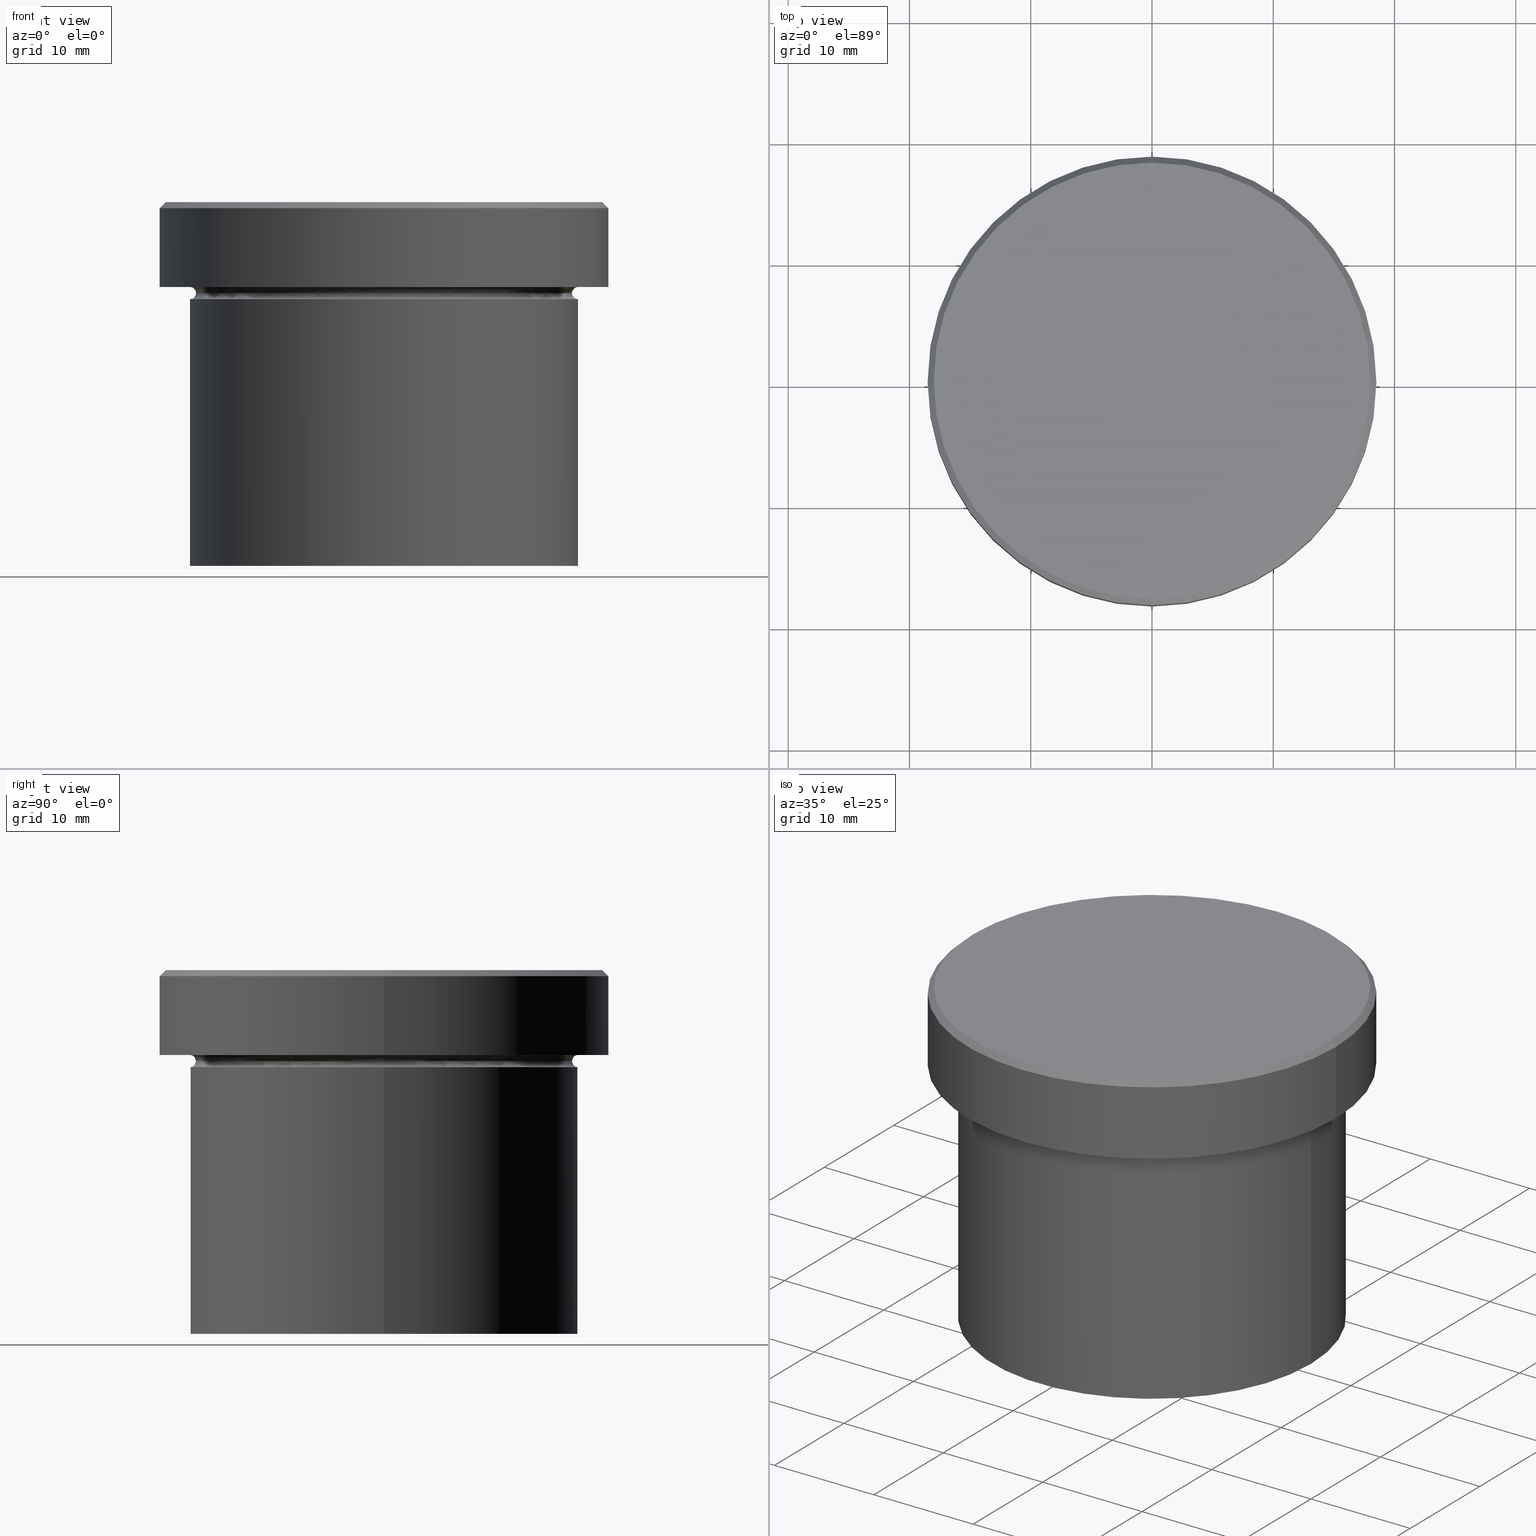
[diagram: canonical four-view strip — front | top / right | iso, engineering-drawing reading convention]
A machine part, canonical four-view strip (front | top / right | iso — engineering-drawing reading convention). The complete STEP part file that produces these views, byte-faithful:
ISO-10303-21;
HEADER;
FILE_DESCRIPTION (( 'STEP AP203' ),
    '1' );
FILE_NAME ('15f8.STEP',
    '2024-01-02T20:23:11',
    ( '' ),
    ( '' ),
    'SwSTEP 2.0',
    'SolidWorks 2019',
    '' );
FILE_SCHEMA (( 'CONFIG_CONTROL_DESIGN' ));
ENDSEC;

DATA;
#1 = EDGE_CURVE ( 'NONE', #232, #349, #121, .T. ) ;
#2 = ORIENTED_EDGE ( 'NONE', *, *, #36, .F. ) ;
#3 = DIRECTION ( 'NONE',  ( 0.000000000000000000, 0.000000000000000000, -1.000000000000000000 ) ) ;
#4 = VECTOR ( 'NONE', #173, 1000.000000000000000 ) ;
#5 = CARTESIAN_POINT ( 'NONE',  ( 0.000000000000000000, 18.50000000000000000, -6.999999999999999112 ) ) ;
#6 = ORIENTED_EDGE ( 'NONE', *, *, #119, .T. ) ;
#7 = LINE ( 'NONE', #169, #285 ) ;
#8 = DIRECTION ( 'NONE',  ( 0.000000000000000000, 0.000000000000000000, -1.000000000000000000 ) ) ;
#9 = ORIENTED_EDGE ( 'NONE', *, *, #279, .F. ) ;
#10 = AXIS2_PLACEMENT_3D ( 'NONE', #164, #64, #68 ) ;
#11 = EDGE_CURVE ( 'NONE', #24, #325, #162, .T. ) ;
#12 = LOCAL_TIME ( 21, 23, 11.00000000000000000, #381 ) ;
#13 = DIRECTION ( 'NONE',  ( 1.000000000000000000, 0.000000000000000000, 0.000000000000000000 ) ) ;
#14 = PRODUCT_DEFINITION_SHAPE ( 'NONE', 'NONE',  #153 ) ;
#15 = VERTEX_POINT ( 'NONE', #297 ) ;
#16 = CARTESIAN_POINT ( 'NONE',  ( -18.00000000000001066, 0.000000000000000000, 0.000000000000000000 ) ) ;
#17 = LINE ( 'NONE', #367, #252 ) ;
#18 = DIRECTION ( 'NONE',  ( -0.000000000000000000, -0.000000000000000000, 1.000000000000000000 ) ) ;
#19 = EDGE_CURVE ( 'NONE', #15, #168, #17, .T. ) ;
#20 = ORIENTED_EDGE ( 'NONE', *, *, #354, .F. ) ;
#21 = AXIS2_PLACEMENT_3D ( 'NONE', #272, #248, #307 ) ;
#22 = CIRCLE ( 'NONE', #390, 18.00000000000001066 ) ;
#23 = ADVANCED_FACE ( 'NONE', ( #94 ), #95, .F. ) ;
#24 = VERTEX_POINT ( 'NONE', #344 ) ;
#25 = CC_DESIGN_PERSON_AND_ORGANIZATION_ASSIGNMENT ( #365, #88, ( #294 ) ) ;
#26 = DIRECTION ( 'NONE',  ( 1.000000000000000000, 0.000000000000000000, 0.000000000000000000 ) ) ;
#27 = APPROVAL_STATUS ( 'not_yet_approved' ) ;
#28 = FACE_OUTER_BOUND ( 'NONE', #392, .T. ) ;
#29 = CC_DESIGN_APPROVAL ( #75, ( #40 ) ) ;
#30 = DIRECTION ( 'NONE',  ( -0.000000000000000000, -0.000000000000000000, 1.000000000000000000 ) ) ;
#31 = DIRECTION ( 'NONE',  ( 1.000000000000000000, 0.000000000000000000, 0.000000000000000000 ) ) ;
#32 = CC_DESIGN_PERSON_AND_ORGANIZATION_ASSIGNMENT ( #402, #180, ( #153 ) ) ;
#33 = ADVANCED_FACE ( 'NONE', ( #315 ), #277, .T. ) ;
#34 = CIRCLE ( 'NONE', #148, 18.50000000000000000 ) ;
#35 = CARTESIAN_POINT ( 'NONE',  ( 18.00000000000001066, 2.234980408443920004E-15, 0.000000000000000000 ) ) ;
#36 = EDGE_CURVE ( 'NONE', #168, #352, #382, .T. ) ;
#37 = CARTESIAN_POINT ( 'NONE',  ( 0.000000000000000000, 0.000000000000000000, -30.00000000000000000 ) ) ;
#38 = CIRCLE ( 'NONE', #236, 0.5000000000000004441 ) ;
#39 = ORIENTED_EDGE ( 'NONE', *, *, #19, .F. ) ;
#40 = SECURITY_CLASSIFICATION ( '', '', #49 ) ;
#41 = DIRECTION ( 'NONE',  ( -1.000000000000000000, 0.000000000000000000, 0.000000000000000000 ) ) ;
#42 = DIRECTION ( 'NONE',  ( -0.000000000000000000, -0.000000000000000000, 1.000000000000000000 ) ) ;
#43 = EDGE_LOOP ( 'NONE', ( #397, #400, #146, #48 ) ) ;
#44 = CARTESIAN_POINT ( 'NONE',  ( -16.00000000000000000, 1.959434878635765131E-15, -7.500000000000000000 ) ) ;
#45 = VERTEX_POINT ( 'NONE', #409 ) ;
#46 = AXIS2_PLACEMENT_3D ( 'NONE', #5, #198, #274 ) ;
#47 = DIRECTION ( 'NONE',  ( 1.000000000000000000, 0.000000000000000000, 0.000000000000000000 ) ) ;
#48 = ORIENTED_EDGE ( 'NONE', *, *, #69, .F. ) ;
#49 = SECURITY_CLASSIFICATION_LEVEL ( 'unclassified' ) ;
#50 = VERTEX_POINT ( 'NONE', #378 ) ;
#51 = EDGE_CURVE ( 'NONE', #24, #50, #219, .T. ) ;
#52 = CARTESIAN_POINT ( 'NONE',  ( 0.000000000000000000, 0.000000000000000000, -7.500000000000000000 ) ) ;
#53 = ORIENTED_EDGE ( 'NONE', *, *, #182, .F. ) ;
#54 = ADVANCED_FACE ( 'NONE', ( #28 ), #210, .F. ) ;
#55 = CIRCLE ( 'NONE', #282, 16.00000000000000000 ) ;
#56 = DIRECTION ( 'NONE',  ( 1.000000000000000000, 0.000000000000000000, 0.000000000000000000 ) ) ;
#57 = LINE ( 'NONE', #312, #4 ) ;
#58 = CARTESIAN_POINT ( 'NONE',  ( 0.000000000000000000, 0.000000000000000000, 0.000000000000000000 ) ) ;
#59 = DIRECTION ( 'NONE',  ( -0.000000000000000000, -0.000000000000000000, 1.000000000000000000 ) ) ;
#60 = DATE_AND_TIME ( #105, #383 ) ;
#61 = DIRECTION ( 'NONE',  ( -0.000000000000000000, -0.000000000000000000, 1.000000000000000000 ) ) ;
#62 = CLOSED_SHELL ( 'NONE', ( #240, #170, #23, #67, #139, #127, #157, #33, #369, #289, #54, #393, #346 ) ) ;
#63 = AXIS2_PLACEMENT_3D ( 'NONE', #233, #203, #73 ) ;
#64 = DIRECTION ( 'NONE',  ( -0.000000000000000000, -0.000000000000000000, 1.000000000000000000 ) ) ;
#65 = APPROVAL_STATUS ( 'not_yet_approved' ) ;
#66 = DESIGN_CONTEXT ( 'detailed design', #350, 'design' ) ;
#67 = ADVANCED_FACE ( 'NONE', ( #213 ), #377, .T. ) ;
#68 = DIRECTION ( 'NONE',  ( 1.000000000000000000, 0.000000000000000000, 0.000000000000000000 ) ) ;
#69 = EDGE_CURVE ( 'NONE', #232, #156, #250, .T. ) ;
#70 = AXIS2_PLACEMENT_3D ( 'NONE', #306, #61, #309 ) ;
#71 = TOROIDAL_SURFACE ( 'NONE', #87, 16.00000000000000000, 0.5000000000000000000 ) ;
#72 = UNCERTAINTY_MEASURE_WITH_UNIT (LENGTH_MEASURE( 1.000000000000000082E-05 ), #238, 'distance_accuracy_value', 'NONE');
#73 = DIRECTION ( 'NONE',  ( 1.000000000000000000, 0.000000000000000000, 0.000000000000000000 ) ) ;
#74 = EDGE_LOOP ( 'NONE', ( #360, #20, #85, #2 ) ) ;
#75 = APPROVAL ( #65, 'NEUR�EN�' ) ;
#76 = FACE_OUTER_BOUND ( 'NONE', #74, .T. ) ;
#77 = AXIS2_PLACEMENT_3D ( 'NONE', #44, #151, #391 ) ;
#78 = CIRCLE ( 'NONE', #112, 16.00000000000000000 ) ;
#79 = CC_DESIGN_PERSON_AND_ORGANIZATION_ASSIGNMENT ( #100, #296, ( #294 ) ) ;
#80 = CARTESIAN_POINT ( 'NONE',  ( -18.50000000000000000, 2.265596578422603396E-15, -0.5000000000000004441 ) ) ;
#81 = CARTESIAN_POINT ( 'NONE',  ( 0.000000000000000000, 0.000000000000000000, -7.500000000000000000 ) ) ;
#82 = FACE_OUTER_BOUND ( 'NONE', #199, .T. ) ;
#83 = EDGE_LOOP ( 'NONE', ( #345, #256, #300, #223 ) ) ;
#84 = CARTESIAN_POINT ( 'NONE',  ( 0.000000000000000000, 0.000000000000000000, -8.000000000000000000 ) ) ;
#85 = ORIENTED_EDGE ( 'NONE', *, *, #407, .T. ) ;
#86 = AXIS2_PLACEMENT_3D ( 'NONE', #161, #134, #376 ) ;
#87 = AXIS2_PLACEMENT_3D ( 'NONE', #52, #98, #123 ) ;
#88 = PERSON_AND_ORGANIZATION_ROLE ( 'design_supplier' ) ;
#89 = DIRECTION ( 'NONE',  ( -0.000000000000000000, -0.000000000000000000, 1.000000000000000000 ) ) ;
#90 = CC_DESIGN_PERSON_AND_ORGANIZATION_ASSIGNMENT ( #337, #399, ( #326 ) ) ;
#91 =( NAMED_UNIT ( * ) PLANE_ANGLE_UNIT ( ) SI_UNIT ( $, .RADIAN. ) );
#92 = ORIENTED_EDGE ( 'NONE', *, *, #319, .T. ) ;
#93 = CALENDAR_DATE ( 2024, 2, 1 ) ;
#94 = FACE_OUTER_BOUND ( 'NONE', #124, .T. ) ;
#95 = TOROIDAL_SURFACE ( 'NONE', #10, 16.00000000000000000, 0.5000000000000000000 ) ;
#96 = CIRCLE ( 'NONE', #316, 18.50000000000000000 ) ;
#97 = MANIFOLD_SOLID_BREP ( 'Zkosen�1', #62 ) ;
#98 = DIRECTION ( 'NONE',  ( 0.000000000000000000, 0.000000000000000000, -1.000000000000000000 ) ) ;
#99 = DIRECTION ( 'NONE',  ( -1.000000000000000000, 0.000000000000000000, 0.000000000000000000 ) ) ;
#100 = PERSON_AND_ORGANIZATION ( #363, #253 ) ;
#101 = CARTESIAN_POINT ( 'NONE',  ( 0.000000000000000000, 0.000000000000000000, -6.999999999999998224 ) ) ;
#102 = PERSON_AND_ORGANIZATION ( #363, #253 ) ;
#103 = CARTESIAN_POINT ( 'NONE',  ( 18.50000000000000000, 0.000000000000000000, -0.5000000000000004441 ) ) ;
#104 = DIRECTION ( 'NONE',  ( -0.000000000000000000, -0.000000000000000000, 1.000000000000000000 ) ) ;
#105 = CALENDAR_DATE ( 2024, 2, 1 ) ;
#106 =( GEOMETRIC_REPRESENTATION_CONTEXT ( 3 ) GLOBAL_UNCERTAINTY_ASSIGNED_CONTEXT ( ( #72 ) ) GLOBAL_UNIT_ASSIGNED_CONTEXT ( ( #238, #91, #128 ) ) REPRESENTATION_CONTEXT ( 'NONE', 'WORKASPACE' ) );
#107 = VERTEX_POINT ( 'NONE', #132 ) ;
#108 = CARTESIAN_POINT ( 'NONE',  ( 0.000000000000000000, 0.000000000000000000, 0.000000000000000000 ) ) ;
#109 = DIRECTION ( 'NONE',  ( 0.000000000000000000, 0.000000000000000000, -1.000000000000000000 ) ) ;
#110 = ORIENTED_EDGE ( 'NONE', *, *, #36, .T. ) ;
#111 = DIRECTION ( 'NONE',  ( -0.000000000000000000, -0.000000000000000000, 1.000000000000000000 ) ) ;
#112 = AXIS2_PLACEMENT_3D ( 'NONE', #260, #290, #321 ) ;
#113 = ORIENTED_EDGE ( 'NONE', *, *, #380, .T. ) ;
#114 = CARTESIAN_POINT ( 'NONE',  ( 16.00000000000000000, 0.000000000000000000, -7.500000000000000000 ) ) ;
#115 = ORIENTED_EDGE ( 'NONE', *, *, #407, .F. ) ;
#116 = CARTESIAN_POINT ( 'NONE',  ( 16.00000000000000000, 1.959434878635765131E-15, -7.500000000000000000 ) ) ;
#117 = ORIENTED_EDGE ( 'NONE', *, *, #273, .F. ) ;
#118 = CALENDAR_DATE ( 2024, 2, 1 ) ;
#119 = EDGE_CURVE ( 'NONE', #15, #45, #34, .T. ) ;
#120 = VERTEX_POINT ( 'NONE', #35 ) ;
#121 = CIRCLE ( 'NONE', #227, 16.00000000000000000 ) ;
#122 = AXIS2_PLACEMENT_3D ( 'NONE', #284, #3, #41 ) ;
#123 = DIRECTION ( 'NONE',  ( -1.000000000000000000, 0.000000000000000000, 0.000000000000000000 ) ) ;
#124 = EDGE_LOOP ( 'NONE', ( #335, #291, #207, #53 ) ) ;
#125 = CALENDAR_DATE ( 2024, 2, 1 ) ;
#126 = CARTESIAN_POINT ( 'NONE',  ( 0.000000000000000000, 0.000000000000000000, -6.999999999999999112 ) ) ;
#127 = ADVANCED_FACE ( 'NONE', ( #166 ), #185, .T. ) ;
#128 =( NAMED_UNIT ( * ) SI_UNIT ( $, .STERADIAN. ) SOLID_ANGLE_UNIT ( ) );
#129 = FACE_OUTER_BOUND ( 'NONE', #283, .T. ) ;
#130 = CONICAL_SURFACE ( 'NONE', #165, 18.00000000000001066, 0.7853981633974378429 ) ;
#131 = APPROVAL_DATE_TIME ( #243, #188 ) ;
#132 = CARTESIAN_POINT ( 'NONE',  ( 16.00000000000000000, 1.959434878635765131E-15, -6.999999999999999112 ) ) ;
#133 = DIRECTION ( 'NONE',  ( -0.000000000000000000, -0.000000000000000000, 1.000000000000000000 ) ) ;
#134 = DIRECTION ( 'NONE',  ( -0.000000000000000000, -1.000000000000000000, -0.000000000000000000 ) ) ;
#135 = PERSON_AND_ORGANIZATION ( #363, #253 ) ;
#136 = CIRCLE ( 'NONE', #379, 15.50000000000000000 ) ;
#137 = CIRCLE ( 'NONE', #302, 18.00000000000001066 ) ;
#138 = ADVANCED_BREP_SHAPE_REPRESENTATION ( '15f8', ( #97, #336 ), #106 ) ;
#139 = ADVANCED_FACE ( 'NONE', ( #129 ), #401, .T. ) ;
#140 = CARTESIAN_POINT ( 'NONE',  ( -16.00000000000000000, 1.959434878635765131E-15, -30.00000000000000000 ) ) ;
#141 = CIRCLE ( 'NONE', #292, 16.00000000000000000 ) ;
#142 = ORIENTED_EDGE ( 'NONE', *, *, #279, .T. ) ;
#143 = DIRECTION ( 'NONE',  ( -1.000000000000000000, 0.000000000000000000, 0.000000000000000000 ) ) ;
#144 = CARTESIAN_POINT ( 'NONE',  ( 16.00000000000000000, 0.000000000000000000, -30.00000000000000000 ) ) ;
#145 = EDGE_CURVE ( 'NONE', #50, #107, #141, .T. ) ;
#146 = ORIENTED_EDGE ( 'NONE', *, *, #319, .F. ) ;
#147 = CARTESIAN_POINT ( 'NONE',  ( 0.000000000000000000, 0.000000000000000000, -0.5000000000000004441 ) ) ;
#148 = AXIS2_PLACEMENT_3D ( 'NONE', #101, #133, #192 ) ;
#149 = CC_DESIGN_APPROVAL ( #181, ( #153 ) ) ;
#150 = ORIENTED_EDGE ( 'NONE', *, *, #201, .F. ) ;
#151 = DIRECTION ( 'NONE',  ( 1.224646799147353207E-16, 1.000000000000000000, 0.000000000000000000 ) ) ;
#152 = CARTESIAN_POINT ( 'NONE',  ( 0.000000000000000000, 0.000000000000000000, -30.00000000000000000 ) ) ;
#153 = PRODUCT_DEFINITION ( 'NEZN�M�', '', #294, #66 ) ;
#154 = DIRECTION ( 'NONE',  ( 1.000000000000000000, 0.000000000000000000, 0.000000000000000000 ) ) ;
#155 = DIRECTION ( 'NONE',  ( -0.7071067811865401342, 0.000000000000000000, -0.7071067811865549002 ) ) ;
#156 = VERTEX_POINT ( 'NONE', #163 ) ;
#157 = ADVANCED_FACE ( 'NONE', ( #371 ), #160, .T. ) ;
#158 = ORIENTED_EDGE ( 'NONE', *, *, #19, .T. ) ;
#159 = APPROVAL_DATE_TIME ( #184, #181 ) ;
#160 = PLANE ( 'NONE',  #308 ) ;
#161 = CARTESIAN_POINT ( 'NONE',  ( -16.00000000000000000, 0.000000000000000000, -7.500000000000000000 ) ) ;
#162 = CIRCLE ( 'NONE', #341, 15.50000000000000000 ) ;
#163 = CARTESIAN_POINT ( 'NONE',  ( 16.00000000000000000, 0.000000000000000000, -8.000000000000000000 ) ) ;
#164 = CARTESIAN_POINT ( 'NONE',  ( 0.000000000000000000, 0.000000000000000000, -7.500000000000000000 ) ) ;
#165 = AXIS2_PLACEMENT_3D ( 'NONE', #231, #109, #143 ) ;
#166 = FACE_OUTER_BOUND ( 'NONE', #269, .T. ) ;
#167 = FACE_OUTER_BOUND ( 'NONE', #196, .T. ) ;
#168 = VERTEX_POINT ( 'NONE', #103 ) ;
#169 = CARTESIAN_POINT ( 'NONE',  ( -16.00000000000000000, 1.959434878635765131E-15, 0.000000000000000000 ) ) ;
#170 = ADVANCED_FACE ( 'NONE', ( #211 ), #364, .F. ) ;
#171 = DIRECTION ( 'NONE',  ( 1.000000000000000000, 0.000000000000000000, 0.000000000000000000 ) ) ;
#172 = ORIENTED_EDGE ( 'NONE', *, *, #69, .T. ) ;
#173 = DIRECTION ( 'NONE',  ( 0.7071067811865401342, 8.659560562354844111E-17, -0.7071067811865549002 ) ) ;
#174 = CIRCLE ( 'NONE', #405, 16.00000000000000000 ) ;
#175 = DIRECTION ( 'NONE',  ( 1.000000000000000000, 0.000000000000000000, 0.000000000000000000 ) ) ;
#176 = EDGE_CURVE ( 'NONE', #120, #168, #57, .T. ) ;
#177 = VERTEX_POINT ( 'NONE', #387 ) ;
#178 = APPLICATION_PROTOCOL_DEFINITION ( 'international standard', 'config_control_design', 1994, #281 ) ;
#179 = EDGE_LOOP ( 'NONE', ( #150, #202, #172, #225 ) ) ;
#180 = PERSON_AND_ORGANIZATION_ROLE ( 'creator' ) ;
#181 = APPROVAL ( #27, 'NEUR�EN�' ) ;
#182 = EDGE_CURVE ( 'NONE', #325, #156, #38, .T. ) ;
#183 = ORIENTED_EDGE ( 'NONE', *, *, #119, .F. ) ;
#184 = DATE_AND_TIME ( #125, #189 ) ;
#185 = PLANE ( 'NONE',  #193 ) ;
#186 = DIRECTION ( 'NONE',  ( 0.000000000000000000, 0.000000000000000000, -1.000000000000000000 ) ) ;
#187 = AXIS2_PLACEMENT_3D ( 'NONE', #244, #342, #190 ) ;
#188 = APPROVAL ( #241, 'NEUR�EN�' ) ;
#189 = LOCAL_TIME ( 21, 23, 11.00000000000000000, #264 ) ;
#190 = DIRECTION ( 'NONE',  ( -1.000000000000000000, 0.000000000000000000, 0.000000000000000000 ) ) ;
#191 = COORDINATED_UNIVERSAL_TIME_OFFSET ( 1, 0, .AHEAD. ) ;
#192 = DIRECTION ( 'NONE',  ( 1.000000000000000000, 0.000000000000000000, 0.000000000000000000 ) ) ;
#193 = AXIS2_PLACEMENT_3D ( 'NONE', #374, #186, #340 ) ;
#194 = CC_DESIGN_APPROVAL ( #188, ( #294 ) ) ;
#195 = DIRECTION ( 'NONE',  ( -1.224646799147353207E-16, 1.000000000000000000, 0.000000000000000000 ) ) ;
#196 = EDGE_LOOP ( 'NONE', ( #183, #265 ) ) ;
#197 = LINE ( 'NONE', #359, #268 ) ;
#198 = DIRECTION ( 'NONE',  ( 0.000000000000000000, 0.000000000000000000, -1.000000000000000000 ) ) ;
#199 = EDGE_LOOP ( 'NONE', ( #362, #328, #221, #115 ) ) ;
#200 = DIRECTION ( 'NONE',  ( -0.000000000000000000, -0.000000000000000000, 1.000000000000000000 ) ) ;
#201 = EDGE_CURVE ( 'NONE', #349, #270, #7, .T. ) ;
#202 = ORIENTED_EDGE ( 'NONE', *, *, #332, .T. ) ;
#203 = DIRECTION ( 'NONE',  ( -0.000000000000000000, -0.000000000000000000, 1.000000000000000000 ) ) ;
#204 = AXIS2_PLACEMENT_3D ( 'NONE', #116, #195, #288 ) ;
#205 = ORIENTED_EDGE ( 'NONE', *, *, #298, .F. ) ;
#206 = ORIENTED_EDGE ( 'NONE', *, *, #273, .T. ) ;
#207 = ORIENTED_EDGE ( 'NONE', *, *, #314, .T. ) ;
#208 = EDGE_CURVE ( 'NONE', #352, #168, #267, .T. ) ;
#209 = APPROVAL_ROLE ( '' ) ;
#210 = TOROIDAL_SURFACE ( 'NONE', #280, 16.00000000000000000, 0.5000000000000000000 ) ;
#211 = FACE_OUTER_BOUND ( 'NONE', #83, .T. ) ;
#212 = VECTOR ( 'NONE', #155, 1000.000000000000000 ) ;
#213 = FACE_OUTER_BOUND ( 'NONE', #43, .T. ) ;
#214 = FACE_OUTER_BOUND ( 'NONE', #368, .T. ) ;
#215 = EDGE_CURVE ( 'NONE', #24, #270, #251, .T. ) ;
#216 = CARTESIAN_POINT ( 'NONE',  ( 0.000000000000000000, 0.000000000000000000, 0.000000000000000000 ) ) ;
#217 = DATE_AND_TIME ( #247, #12 ) ;
#218 = DIRECTION ( 'NONE',  ( -0.000000000000000000, -0.000000000000000000, 1.000000000000000000 ) ) ;
#219 = CIRCLE ( 'NONE', #86, 0.5000000000000004441 ) ;
#220 = CARTESIAN_POINT ( 'NONE',  ( 16.00000000000000000, 0.000000000000000000, 0.000000000000000000 ) ) ;
#221 = ORIENTED_EDGE ( 'NONE', *, *, #208, .F. ) ;
#222 = CIRCLE ( 'NONE', #229, 16.00000000000000000 ) ;
#223 = ORIENTED_EDGE ( 'NONE', *, *, #51, .F. ) ;
#224 = DIRECTION ( 'NONE',  ( -0.000000000000000000, -0.000000000000000000, 1.000000000000000000 ) ) ;
#225 = ORIENTED_EDGE ( 'NONE', *, *, #314, .F. ) ;
#226 = DIRECTION ( 'NONE',  ( -0.000000000000000000, -0.000000000000000000, 1.000000000000000000 ) ) ;
#227 = AXIS2_PLACEMENT_3D ( 'NONE', #152, #357, #175 ) ;
#228 = DIRECTION ( 'NONE',  ( 1.000000000000000000, 0.000000000000000000, 0.000000000000000000 ) ) ;
#229 = AXIS2_PLACEMENT_3D ( 'NONE', #37, #329, #47 ) ;
#230 = ORIENTED_EDGE ( 'NONE', *, *, #298, .T. ) ;
#231 = CARTESIAN_POINT ( 'NONE',  ( 0.000000000000000000, 0.000000000000000000, 0.000000000000000000 ) ) ;
#232 = VERTEX_POINT ( 'NONE', #144 ) ;
#233 = CARTESIAN_POINT ( 'NONE',  ( 0.000000000000000000, 0.000000000000000000, 0.000000000000000000 ) ) ;
#234 = ORIENTED_EDGE ( 'NONE', *, *, #1, .F. ) ;
#235 = PERSON_AND_ORGANIZATION ( #363, #253 ) ;
#236 = AXIS2_PLACEMENT_3D ( 'NONE', #114, #324, #8 ) ;
#237 = ORIENTED_EDGE ( 'NONE', *, *, #332, .F. ) ;
#238 =( LENGTH_UNIT ( ) NAMED_UNIT ( * ) SI_UNIT ( .MILLI., .METRE. ) );
#239 = ORIENTED_EDGE ( 'NONE', *, *, #208, .T. ) ;
#240 = ADVANCED_FACE ( 'NONE', ( #82 ), #130, .T. ) ;
#241 = APPROVAL_STATUS ( 'not_yet_approved' ) ;
#242 = DIRECTION ( 'NONE',  ( -0.000000000000000000, -0.000000000000000000, 1.000000000000000000 ) ) ;
#243 = DATE_AND_TIME ( #93, #373 ) ;
#244 = CARTESIAN_POINT ( 'NONE',  ( 0.000000000000000000, 0.000000000000000000, -7.500000000000000000 ) ) ;
#245 = APPROVAL_PERSON_ORGANIZATION ( #102, #75, #249 ) ;
#246 = DIRECTION ( 'NONE',  ( 1.000000000000000000, 0.000000000000000000, 0.000000000000000000 ) ) ;
#247 = CALENDAR_DATE ( 2024, 2, 1 ) ;
#248 = DIRECTION ( 'NONE',  ( 0.000000000000000000, 0.000000000000000000, -1.000000000000000000 ) ) ;
#249 = APPROVAL_ROLE ( '' ) ;
#250 = LINE ( 'NONE', #220, #389 ) ;
#251 = CIRCLE ( 'NONE', #77, 0.5000000000000004441 ) ;
#252 = VECTOR ( 'NONE', #89, 1000.000000000000000 ) ;
#253 = ORGANIZATION ( 'NEUR�EN�', 'NEUR�EN�', '' ) ;
#254 = DIRECTION ( 'NONE',  ( -0.000000000000000000, -0.000000000000000000, 1.000000000000000000 ) ) ;
#255 = CC_DESIGN_DATE_AND_TIME_ASSIGNMENT ( #333, #404, ( #153 ) ) ;
#256 = ORIENTED_EDGE ( 'NONE', *, *, #305, .T. ) ;
#257 = FACE_OUTER_BOUND ( 'NONE', #179, .T. ) ;
#258 = CARTESIAN_POINT ( 'NONE',  ( 0.000000000000000000, 0.000000000000000000, -7.500000000000000000 ) ) ;
#259 = ORIENTED_EDGE ( 'NONE', *, *, #305, .F. ) ;
#260 = CARTESIAN_POINT ( 'NONE',  ( 0.000000000000000000, 0.000000000000000000, -8.000000000000000000 ) ) ;
#261 = EDGE_LOOP ( 'NONE', ( #295, #113 ) ) ;
#262 = DIRECTION ( 'NONE',  ( -1.000000000000000000, 0.000000000000000000, 0.000000000000000000 ) ) ;
#263 = DIRECTION ( 'NONE',  ( -0.000000000000000000, -0.000000000000000000, 1.000000000000000000 ) ) ;
#264 = COORDINATED_UNIVERSAL_TIME_OFFSET ( 1, 0, .AHEAD. ) ;
#265 = ORIENTED_EDGE ( 'NONE', *, *, #318, .F. ) ;
#266 = LINE ( 'NONE', #16, #212 ) ;
#267 = CIRCLE ( 'NONE', #322, 18.50000000000000000 ) ;
#268 = VECTOR ( 'NONE', #200, 1000.000000000000000 ) ;
#269 = EDGE_LOOP ( 'NONE', ( #234, #237 ) ) ;
#270 = VERTEX_POINT ( 'NONE', #327 ) ;
#271 = COORDINATED_UNIVERSAL_TIME_OFFSET ( 1, 0, .AHEAD. ) ;
#272 = CARTESIAN_POINT ( 'NONE',  ( 0.000000000000000000, 0.000000000000000000, -0.5000000000000004441 ) ) ;
#273 = EDGE_CURVE ( 'NONE', #325, #24, #136, .T. ) ;
#274 = DIRECTION ( 'NONE',  ( -1.000000000000000000, 0.000000000000000000, -0.000000000000000000 ) ) ;
#275 = CARTESIAN_POINT ( 'NONE',  ( 0.000000000000000000, 0.000000000000000000, 0.000000000000000000 ) ) ;
#276 = CONICAL_SURFACE ( 'NONE', #122, 18.00000000000001066, 0.7853981633974378429 ) ;
#277 = CYLINDRICAL_SURFACE ( 'NONE', #398, 18.50000000000000000 ) ;
#278 = DIRECTION ( 'NONE',  ( 1.000000000000000000, 0.000000000000000000, 0.000000000000000000 ) ) ;
#279 = EDGE_CURVE ( 'NONE', #45, #352, #197, .T. ) ;
#280 = AXIS2_PLACEMENT_3D ( 'NONE', #406, #242, #31 ) ;
#281 = APPLICATION_CONTEXT ( 'configuration controlled 3d designs of mechanical parts and assemblies' ) ;
#282 = AXIS2_PLACEMENT_3D ( 'NONE', #361, #226, #262 ) ;
#283 = EDGE_LOOP ( 'NONE', ( #6, #142, #239, #39 ) ) ;
#284 = CARTESIAN_POINT ( 'NONE',  ( 0.000000000000000000, 0.000000000000000000, 0.000000000000000000 ) ) ;
#285 = VECTOR ( 'NONE', #293, 1000.000000000000000 ) ;
#286 = DIRECTION ( 'NONE',  ( 1.000000000000000000, 0.000000000000000000, 0.000000000000000000 ) ) ;
#287 = EDGE_LOOP ( 'NONE', ( #386, #230 ) ) ;
#288 = DIRECTION ( 'NONE',  ( -1.000000000000000000, -1.224646799147349509E-16, 0.000000000000000000 ) ) ;
#289 = ADVANCED_FACE ( 'NONE', ( #257 ), #385, .T. ) ;
#290 = DIRECTION ( 'NONE',  ( -0.000000000000000000, -0.000000000000000000, 1.000000000000000000 ) ) ;
#291 = ORIENTED_EDGE ( 'NONE', *, *, #215, .T. ) ;
#292 = AXIS2_PLACEMENT_3D ( 'NONE', #126, #30, #99 ) ;
#293 = DIRECTION ( 'NONE',  ( -0.000000000000000000, -0.000000000000000000, 1.000000000000000000 ) ) ;
#294 = PRODUCT_DEFINITION_FORMATION_WITH_SPECIFIED_SOURCE ( 'LIBOVOLN�', '', #326, .NOT_KNOWN. ) ;
#295 = ORIENTED_EDGE ( 'NONE', *, *, #354, .T. ) ;
#296 = PERSON_AND_ORGANIZATION_ROLE ( 'creator' ) ;
#297 = CARTESIAN_POINT ( 'NONE',  ( 18.50000000000000000, 0.000000000000000000, -6.999999999999998224 ) ) ;
#298 = EDGE_CURVE ( 'NONE', #107, #50, #55, .T. ) ;
#299 = MECHANICAL_CONTEXT ( 'NONE', #281, 'mechanical' ) ;
#300 = ORIENTED_EDGE ( 'NONE', *, *, #145, .F. ) ;
#301 = PERSON_AND_ORGANIZATION ( #363, #253 ) ;
#302 = AXIS2_PLACEMENT_3D ( 'NONE', #58, #18, #246 ) ;
#303 = EDGE_LOOP ( 'NONE', ( #9, #331, #158, #110 ) ) ;
#304 = DIRECTION ( 'NONE',  ( 0.000000000000000000, 0.000000000000000000, 1.000000000000000000 ) ) ;
#305 = EDGE_CURVE ( 'NONE', #325, #107, #347, .T. ) ;
#306 = CARTESIAN_POINT ( 'NONE',  ( 0.000000000000000000, 0.000000000000000000, 0.000000000000000000 ) ) ;
#307 = DIRECTION ( 'NONE',  ( 1.000000000000000000, 0.000000000000000000, 0.000000000000000000 ) ) ;
#308 = AXIS2_PLACEMENT_3D ( 'NONE', #408, #403, #26 ) ;
#309 = DIRECTION ( 'NONE',  ( 1.000000000000000000, 0.000000000000000000, 0.000000000000000000 ) ) ;
#310 = CC_DESIGN_SECURITY_CLASSIFICATION ( #40, ( #294 ) ) ;
#311 = SHAPE_DEFINITION_REPRESENTATION ( #14, #138 ) ;
#312 = CARTESIAN_POINT ( 'NONE',  ( 18.00000000000001066, 2.204364238465237006E-15, 0.000000000000000000 ) ) ;
#313 = APPROVAL_DATE_TIME ( #60, #75 ) ;
#314 = EDGE_CURVE ( 'NONE', #270, #156, #174, .T. ) ;
#315 = FACE_OUTER_BOUND ( 'NONE', #303, .T. ) ;
#316 = AXIS2_PLACEMENT_3D ( 'NONE', #351, #254, #228 ) ;
#317 = PERSON_AND_ORGANIZATION_ROLE ( 'classification_officer' ) ;
#318 = EDGE_CURVE ( 'NONE', #45, #15, #96, .T. ) ;
#319 = EDGE_CURVE ( 'NONE', #156, #270, #78, .T. ) ;
#320 = CC_DESIGN_PERSON_AND_ORGANIZATION_ASSIGNMENT ( #135, #317, ( #40 ) ) ;
#321 = DIRECTION ( 'NONE',  ( 1.000000000000000000, 0.000000000000000000, 0.000000000000000000 ) ) ;
#322 = AXIS2_PLACEMENT_3D ( 'NONE', #147, #384, #394 ) ;
#323 = PLANE ( 'NONE',  #46 ) ;
#324 = DIRECTION ( 'NONE',  ( 0.000000000000000000, -1.000000000000000000, 0.000000000000000000 ) ) ;
#325 = VERTEX_POINT ( 'NONE', #356 ) ;
#326 = PRODUCT ( '15f8', '15f8', '', ( #299 ) ) ;
#327 = CARTESIAN_POINT ( 'NONE',  ( -16.00000000000000000, 1.959434878635765131E-15, -8.000000000000000000 ) ) ;
#328 = ORIENTED_EDGE ( 'NONE', *, *, #176, .T. ) ;
#329 = DIRECTION ( 'NONE',  ( -0.000000000000000000, -0.000000000000000000, 1.000000000000000000 ) ) ;
#330 = LOCAL_TIME ( 21, 23, 11.00000000000000000, #271 ) ;
#331 = ORIENTED_EDGE ( 'NONE', *, *, #318, .T. ) ;
#332 = EDGE_CURVE ( 'NONE', #349, #232, #222, .T. ) ;
#333 = DATE_AND_TIME ( #118, #330 ) ;
#334 = ORIENTED_EDGE ( 'NONE', *, *, #215, .F. ) ;
#335 = ORIENTED_EDGE ( 'NONE', *, *, #11, .F. ) ;
#336 = AXIS2_PLACEMENT_3D ( 'NONE', #375, #304, #56 ) ;
#337 = PERSON_AND_ORGANIZATION ( #363, #253 ) ;
#338 = DIRECTION ( 'NONE',  ( 1.000000000000000000, 0.000000000000000000, 0.000000000000000000 ) ) ;
#339 = APPLICATION_PROTOCOL_DEFINITION ( 'international standard', 'config_control_design', 1994, #350 ) ;
#340 = DIRECTION ( 'NONE',  ( -1.000000000000000000, 0.000000000000000000, -0.000000000000000000 ) ) ;
#341 = AXIS2_PLACEMENT_3D ( 'NONE', #81, #263, #154 ) ;
#342 = DIRECTION ( 'NONE',  ( 0.000000000000000000, 0.000000000000000000, -1.000000000000000000 ) ) ;
#343 = DATE_TIME_ROLE ( 'classification_date' ) ;
#344 = CARTESIAN_POINT ( 'NONE',  ( -15.50000000000000000, 1.928818708657081344E-15, -7.500000000000000000 ) ) ;
#345 = ORIENTED_EDGE ( 'NONE', *, *, #11, .T. ) ;
#346 = ADVANCED_FACE ( 'NONE', ( #76 ), #276, .T. ) ;
#347 = CIRCLE ( 'NONE', #204, 0.5000000000000004441 ) ;
#348 = FACE_BOUND ( 'NONE', #287, .T. ) ;
#349 = VERTEX_POINT ( 'NONE', #140 ) ;
#350 = APPLICATION_CONTEXT ( 'configuration controlled 3d designs of mechanical parts and assemblies' ) ;
#351 = CARTESIAN_POINT ( 'NONE',  ( 0.000000000000000000, 0.000000000000000000, -6.999999999999998224 ) ) ;
#352 = VERTEX_POINT ( 'NONE', #80 ) ;
#353 = APPROVAL_PERSON_ORGANIZATION ( #301, #188, #209 ) ;
#354 = EDGE_CURVE ( 'NONE', #177, #120, #22, .T. ) ;
#355 = APPROVAL_PERSON_ORGANIZATION ( #235, #181, #396 ) ;
#356 = CARTESIAN_POINT ( 'NONE',  ( 15.50000000000000000, 0.000000000000000000, -7.500000000000000000 ) ) ;
#357 = DIRECTION ( 'NONE',  ( -0.000000000000000000, -0.000000000000000000, 1.000000000000000000 ) ) ;
#358 = PRODUCT_RELATED_PRODUCT_CATEGORY ( 'detail', '', ( #326 ) ) ;
#359 = CARTESIAN_POINT ( 'NONE',  ( -18.50000000000000000, 2.265596578422603396E-15, 0.000000000000000000 ) ) ;
#360 = ORIENTED_EDGE ( 'NONE', *, *, #176, .F. ) ;
#361 = CARTESIAN_POINT ( 'NONE',  ( 0.000000000000000000, 0.000000000000000000, -6.999999999999999112 ) ) ;
#362 = ORIENTED_EDGE ( 'NONE', *, *, #380, .F. ) ;
#363 = PERSON ( 'NEUR�EN�', 'NEUR�EN�', 'NEUR�EN�', ('NEUR�EN�'), ('NEUR�EN�'), ('NEUR�EN�') ) ;
#364 = TOROIDAL_SURFACE ( 'NONE', #187, 16.00000000000000000, 0.5000000000000000000 ) ;
#365 = PERSON_AND_ORGANIZATION ( #363, #253 ) ;
#366 = CC_DESIGN_DATE_AND_TIME_ASSIGNMENT ( #217, #343, ( #40 ) ) ;
#367 = CARTESIAN_POINT ( 'NONE',  ( 18.50000000000000000, 0.000000000000000000, 0.000000000000000000 ) ) ;
#368 = EDGE_LOOP ( 'NONE', ( #259, #206, #395, #205 ) ) ;
#369 = ADVANCED_FACE ( 'NONE', ( #348, #167 ), #323, .T. ) ;
#370 = COORDINATED_UNIVERSAL_TIME_OFFSET ( 1, 0, .AHEAD. ) ;
#371 = FACE_OUTER_BOUND ( 'NONE', #261, .T. ) ;
#372 = AXIS2_PLACEMENT_3D ( 'NONE', #275, #218, #338 ) ;
#373 = LOCAL_TIME ( 21, 23, 11.00000000000000000, #370 ) ;
#374 = CARTESIAN_POINT ( 'NONE',  ( 0.000000000000000000, 16.00000000000000000, -30.00000000000000000 ) ) ;
#375 = CARTESIAN_POINT ( 'NONE',  ( 0.000000000000000000, 0.000000000000000000, 0.000000000000000000 ) ) ;
#376 = DIRECTION ( 'NONE',  ( 0.000000000000000000, 0.000000000000000000, -1.000000000000000000 ) ) ;
#377 = CYLINDRICAL_SURFACE ( 'NONE', #372, 16.00000000000000000 ) ;
#378 = CARTESIAN_POINT ( 'NONE',  ( -16.00000000000000000, 0.000000000000000000, -6.999999999999999112 ) ) ;
#379 = AXIS2_PLACEMENT_3D ( 'NONE', #258, #42, #13 ) ;
#380 = EDGE_CURVE ( 'NONE', #120, #177, #137, .T. ) ;
#381 = COORDINATED_UNIVERSAL_TIME_OFFSET ( 1, 0, .AHEAD. ) ;
#382 = CIRCLE ( 'NONE', #21, 18.50000000000000000 ) ;
#383 = LOCAL_TIME ( 21, 23, 11.00000000000000000, #191 ) ;
#384 = DIRECTION ( 'NONE',  ( 0.000000000000000000, 0.000000000000000000, -1.000000000000000000 ) ) ;
#385 = CYLINDRICAL_SURFACE ( 'NONE', #63, 16.00000000000000000 ) ;
#386 = ORIENTED_EDGE ( 'NONE', *, *, #145, .T. ) ;
#387 = CARTESIAN_POINT ( 'NONE',  ( -18.00000000000001066, 0.000000000000000000, 0.000000000000000000 ) ) ;
#388 = ORIENTED_EDGE ( 'NONE', *, *, #182, .T. ) ;
#389 = VECTOR ( 'NONE', #59, 1000.000000000000000 ) ;
#390 = AXIS2_PLACEMENT_3D ( 'NONE', #108, #224, #286 ) ;
#391 = DIRECTION ( 'NONE',  ( -1.000000000000000000, 1.224646799147349509E-16, 0.000000000000000000 ) ) ;
#392 = EDGE_LOOP ( 'NONE', ( #334, #117, #388, #92 ) ) ;
#393 = ADVANCED_FACE ( 'NONE', ( #214 ), #71, .F. ) ;
#394 = DIRECTION ( 'NONE',  ( 1.000000000000000000, 0.000000000000000000, 0.000000000000000000 ) ) ;
#395 = ORIENTED_EDGE ( 'NONE', *, *, #51, .T. ) ;
#396 = APPROVAL_ROLE ( '' ) ;
#397 = ORIENTED_EDGE ( 'NONE', *, *, #1, .T. ) ;
#398 = AXIS2_PLACEMENT_3D ( 'NONE', #216, #104, #278 ) ;
#399 = PERSON_AND_ORGANIZATION_ROLE ( 'design_owner' ) ;
#400 = ORIENTED_EDGE ( 'NONE', *, *, #201, .T. ) ;
#401 = CYLINDRICAL_SURFACE ( 'NONE', #70, 18.50000000000000000 ) ;
#402 = PERSON_AND_ORGANIZATION ( #363, #253 ) ;
#403 = DIRECTION ( 'NONE',  ( 0.000000000000000000, -0.000000000000000000, 1.000000000000000000 ) ) ;
#404 = DATE_TIME_ROLE ( 'creation_date' ) ;
#405 = AXIS2_PLACEMENT_3D ( 'NONE', #84, #111, #171 ) ;
#406 = CARTESIAN_POINT ( 'NONE',  ( 0.000000000000000000, 0.000000000000000000, -7.500000000000000000 ) ) ;
#407 = EDGE_CURVE ( 'NONE', #177, #352, #266, .T. ) ;
#408 = CARTESIAN_POINT ( 'NONE',  ( 0.000000000000000000, 0.000000000000000000, 0.000000000000000000 ) ) ;
#409 = CARTESIAN_POINT ( 'NONE',  ( -18.50000000000000000, 2.265596578422603396E-15, -6.999999999999998224 ) ) ;
ENDSEC;
END-ISO-10303-21;
